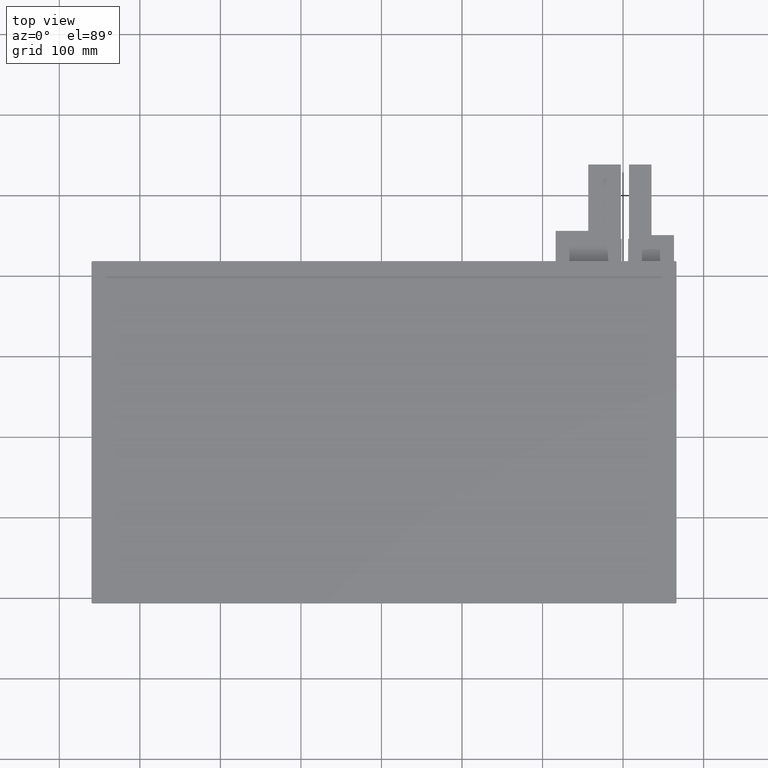
[diagram: clean part render]
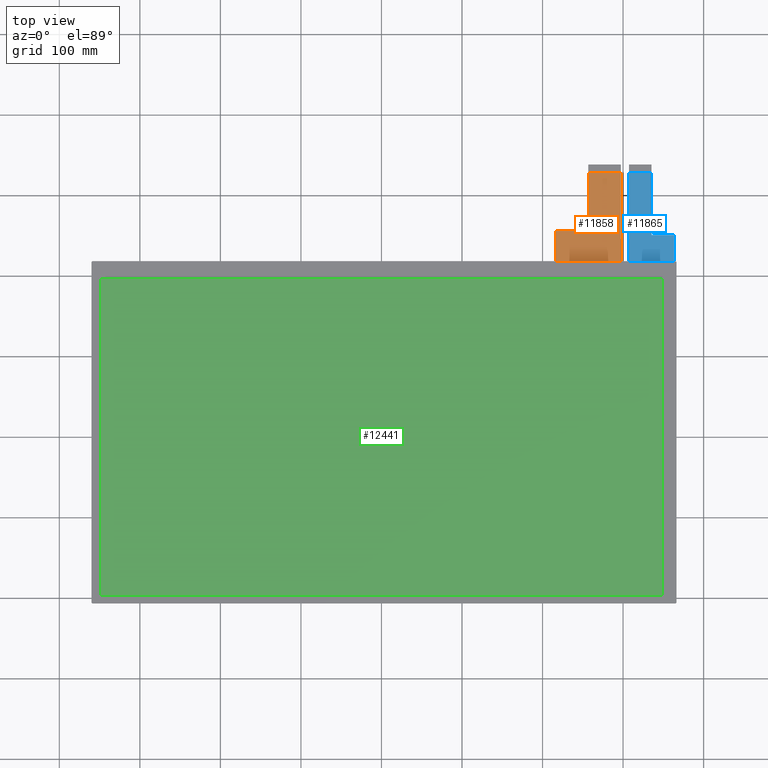
[diagram: same view with three faces highlighted in distinct colors, each labeled with its STEP entity id]
A machine part, top view with three faces highlighted in distinct colors.
Their STEP definitions:

[orange] entity #11858 — the highlighted planar face has unit normal (0, 0, 1).
#84=CIRCLE('',#12472,0.5);
#85=CIRCLE('',#12475,0.5);
#124=FACE_OUTER_BOUND('',#719,.T.);
#719=EDGE_LOOP('',(#7779,#7780,#7781,#7782,#7783,#7784,#7785,#7786,#7787,
#7788));
#1335=LINE('',#16116,#3079);
#1338=LINE('',#16122,#3082);
#1339=LINE('',#16124,#3083);
#1340=LINE('',#16126,#3084);
#1341=LINE('',#16128,#3085);
#1342=LINE('',#16130,#3086);
#1343=LINE('',#16132,#3087);
#1344=LINE('',#16134,#3088);
#3079=VECTOR('',#13129,10.);
#3082=VECTOR('',#13134,10.);
#3083=VECTOR('',#13135,10.);
#3084=VECTOR('',#13136,10.);
#3085=VECTOR('',#13137,10.);
#3086=VECTOR('',#13138,10.);
#3087=VECTOR('',#13139,10.);
#3088=VECTOR('',#13140,10.);
#4817=VERTEX_POINT('',#16109);
#4818=VERTEX_POINT('',#16111);
#4819=VERTEX_POINT('',#16115);
#4821=VERTEX_POINT('',#16121);
#4822=VERTEX_POINT('',#16123);
#4823=VERTEX_POINT('',#16125);
#4824=VERTEX_POINT('',#16127);
#4825=VERTEX_POINT('',#16129);
#4826=VERTEX_POINT('',#16131);
#4827=VERTEX_POINT('',#16133);
#5999=EDGE_CURVE('',#4817,#4818,#84,.T.);
#6001=EDGE_CURVE('',#4819,#4818,#1335,.T.);
#6004=EDGE_CURVE('',#4817,#4821,#1338,.T.);
#6005=EDGE_CURVE('',#4822,#4821,#1339,.T.);
#6006=EDGE_CURVE('',#4822,#4823,#1340,.T.);
#6007=EDGE_CURVE('',#4823,#4824,#1341,.T.);
#6008=EDGE_CURVE('',#4824,#4825,#1342,.T.);
#6009=EDGE_CURVE('',#4825,#4826,#1343,.T.);
#6010=EDGE_CURVE('',#4826,#4827,#1344,.T.);
#6011=EDGE_CURVE('',#4819,#4827,#85,.T.);
#7779=ORIENTED_EDGE('',*,*,#5999,.F.);
#7780=ORIENTED_EDGE('',*,*,#6004,.T.);
#7781=ORIENTED_EDGE('',*,*,#6005,.F.);
#7782=ORIENTED_EDGE('',*,*,#6006,.T.);
#7783=ORIENTED_EDGE('',*,*,#6007,.T.);
#7784=ORIENTED_EDGE('',*,*,#6008,.T.);
#7785=ORIENTED_EDGE('',*,*,#6009,.T.);
#7786=ORIENTED_EDGE('',*,*,#6010,.T.);
#7787=ORIENTED_EDGE('',*,*,#6011,.F.);
#7788=ORIENTED_EDGE('',*,*,#6001,.T.);
#11271=PLANE('',#12474);
#11858=ADVANCED_FACE('',(#124),#11271,.T.);
#12472=AXIS2_PLACEMENT_3D('',#16112,#13124,#13125);
#12474=AXIS2_PLACEMENT_3D('',#16120,#13132,#13133);
#12475=AXIS2_PLACEMENT_3D('',#16135,#13141,#13142);
#13124=DIRECTION('center_axis',(0.,0.,-1.));
#13125=DIRECTION('ref_axis',(-0.707106781186598,0.707106781186497,0.));
#13129=DIRECTION('',(-1.,-8.77213254024815E-16,0.));
#13132=DIRECTION('center_axis',(0.,0.,1.));
#13133=DIRECTION('ref_axis',(1.,0.,0.));
#13134=DIRECTION('',(9.47390314346802E-16,-1.,0.));
#13135=DIRECTION('',(-1.,-4.89152372132796E-17,0.));
#13136=DIRECTION('',(-5.14886040405868E-15,1.,0.));
#13137=DIRECTION('',(-1.,0.,0.));
#13138=DIRECTION('',(-7.68985644762012E-16,1.,0.));
#13139=DIRECTION('',(-1.,0.,0.));
#13140=DIRECTION('',(4.30631961066727E-16,-1.,0.));
#13141=DIRECTION('center_axis',(0.,0.,1.));
#13142=DIRECTION('ref_axis',(0.707106781186598,-0.707106781186497,0.));
#16109=CARTESIAN_POINT('',(216.3,255.525,-1.1));
#16111=CARTESIAN_POINT('',(216.8,256.025,-1.1));
#16112=CARTESIAN_POINT('Origin',(216.8,255.525,-1.1));
#16115=CARTESIAN_POINT('',(256.3,256.025,-1.1));
#16116=CARTESIAN_POINT('',(256.8,256.025,-1.1));
#16120=CARTESIAN_POINT('Origin',(257.3,278.525,-1.1));
#16121=CARTESIAN_POINT('',(216.3,218.525,-1.1));
#16122=CARTESIAN_POINT('',(216.3,256.025,-1.1));
#16123=CARTESIAN_POINT('',(298.3,218.525,-1.1));
#16124=CARTESIAN_POINT('',(-51.3500000000001,218.525,-1.1));
#16125=CARTESIAN_POINT('',(298.3,246.125,-1.1));
#16126=CARTESIAN_POINT('',(298.3,218.525,-1.1));
#16127=CARTESIAN_POINT('',(297.3,246.125,-1.1));
#16128=CARTESIAN_POINT('',(298.3,246.125,-1.1));
#16129=CARTESIAN_POINT('',(297.3,328.525,-1.1));
#16130=CARTESIAN_POINT('',(297.3,246.125,-1.1));
#16131=CARTESIAN_POINT('',(256.8,328.525,-1.1));
#16132=CARTESIAN_POINT('',(257.05,328.525,-1.1));
#16133=CARTESIAN_POINT('',(256.8,256.525,-1.1));
#16134=CARTESIAN_POINT('',(256.8,338.525,-1.1));
#16135=CARTESIAN_POINT('Origin',(256.3,256.525,-1.1));

[blue] entity #11865 — the highlighted planar face has unit normal (0, 0, 1).
#87=CIRCLE('',#12480,0.5);
#90=CIRCLE('',#12485,0.5);
#131=FACE_OUTER_BOUND('',#726,.T.);
#726=EDGE_LOOP('',(#7817,#7818,#7819,#7820,#7821,#7822,#7823,#7824,#7825,
#7826));
#1354=LINE('',#16163,#3098);
#1358=LINE('',#16175,#3102);
#1361=LINE('',#16181,#3105);
#1362=LINE('',#16183,#3106);
#1363=LINE('',#16185,#3107);
#1364=LINE('',#16187,#3108);
#1365=LINE('',#16189,#3109);
#1366=LINE('',#16190,#3110);
#3098=VECTOR('',#13166,10.);
#3102=VECTOR('',#13178,10.);
#3105=VECTOR('',#13183,10.);
#3106=VECTOR('',#13184,10.);
#3107=VECTOR('',#13185,10.);
#3108=VECTOR('',#13186,10.);
#3109=VECTOR('',#13187,10.);
#3110=VECTOR('',#13188,10.);
#4834=VERTEX_POINT('',#16153);
#4835=VERTEX_POINT('',#16154);
#4838=VERTEX_POINT('',#16162);
#4841=VERTEX_POINT('',#16170);
#4842=VERTEX_POINT('',#16174);
#4844=VERTEX_POINT('',#16180);
#4845=VERTEX_POINT('',#16182);
#4846=VERTEX_POINT('',#16184);
#4847=VERTEX_POINT('',#16186);
#4848=VERTEX_POINT('',#16188);
#6020=EDGE_CURVE('',#4834,#4835,#87,.T.);
#6024=EDGE_CURVE('',#4838,#4835,#1354,.T.);
#6028=EDGE_CURVE('',#4838,#4841,#90,.T.);
#6030=EDGE_CURVE('',#4842,#4841,#1358,.T.);
#6033=EDGE_CURVE('',#4834,#4844,#1361,.T.);
#6034=EDGE_CURVE('',#4844,#4845,#1362,.T.);
#6035=EDGE_CURVE('',#4845,#4846,#1363,.T.);
#6036=EDGE_CURVE('',#4846,#4847,#1364,.T.);
#6037=EDGE_CURVE('',#4847,#4848,#1365,.T.);
#6038=EDGE_CURVE('',#4842,#4848,#1366,.T.);
#7817=ORIENTED_EDGE('',*,*,#6028,.F.);
#7818=ORIENTED_EDGE('',*,*,#6024,.T.);
#7819=ORIENTED_EDGE('',*,*,#6020,.F.);
#7820=ORIENTED_EDGE('',*,*,#6033,.T.);
#7821=ORIENTED_EDGE('',*,*,#6034,.T.);
#7822=ORIENTED_EDGE('',*,*,#6035,.T.);
#7823=ORIENTED_EDGE('',*,*,#6036,.T.);
#7824=ORIENTED_EDGE('',*,*,#6037,.T.);
#7825=ORIENTED_EDGE('',*,*,#6038,.F.);
#7826=ORIENTED_EDGE('',*,*,#6030,.T.);
#11275=PLANE('',#12487);
#11865=ADVANCED_FACE('',(#131),#11275,.T.);
#12480=AXIS2_PLACEMENT_3D('',#16155,#13158,#13159);
#12485=AXIS2_PLACEMENT_3D('',#16171,#13173,#13174);
#12487=AXIS2_PLACEMENT_3D('',#16179,#13181,#13182);
#13158=DIRECTION('center_axis',(0.,0.,1.));
#13159=DIRECTION('ref_axis',(-0.707106781186497,-0.707106781186598,0.));
#13166=DIRECTION('',(-1.,0.,0.));
#13173=DIRECTION('center_axis',(0.,0.,-1.));
#13174=DIRECTION('ref_axis',(0.707106781186548,0.707106781186548,0.));
#13178=DIRECTION('',(0.,1.,0.));
#13181=DIRECTION('center_axis',(0.,0.,1.));
#13182=DIRECTION('ref_axis',(1.,0.,0.));
#13183=DIRECTION('',(-8.10196962098175E-16,1.,0.));
#13184=DIRECTION('',(-1.,0.,0.));
#13185=DIRECTION('',(1.15347846714302E-15,-1.,0.));
#13186=DIRECTION('',(-1.,0.,0.));
#13187=DIRECTION('',(1.28721510101467E-15,-1.,0.));
#13188=DIRECTION('',(-1.,-4.89152372132796E-17,0.));
#16153=CARTESIAN_POINT('',(335.3,251.325,-1.1));
#16154=CARTESIAN_POINT('',(335.8,250.825,-1.1));
#16155=CARTESIAN_POINT('Origin',(335.8,251.325,-1.1));
#16162=CARTESIAN_POINT('',(362.8,250.825,-1.1));
#16163=CARTESIAN_POINT('',(363.3,250.825,-1.1));
#16170=CARTESIAN_POINT('',(363.3,250.325,-1.1));
#16171=CARTESIAN_POINT('Origin',(362.8,250.325,-1.1));
#16174=CARTESIAN_POINT('',(363.3,218.525,-1.1));
#16175=CARTESIAN_POINT('',(363.3,218.525,-1.1));
#16179=CARTESIAN_POINT('Origin',(334.8,278.525,-1.1));
#16180=CARTESIAN_POINT('',(335.3,328.525000000001,-1.1));
#16181=CARTESIAN_POINT('',(335.3,250.825,-1.1));
#16182=CARTESIAN_POINT('',(307.3,328.525000000001,-1.1));
#16183=CARTESIAN_POINT('',(321.05,328.525000000001,-1.1));
#16184=CARTESIAN_POINT('',(307.3,246.125,-1.1));
#16185=CARTESIAN_POINT('',(307.3,338.525,-1.1));
#16186=CARTESIAN_POINT('',(306.3,246.125,-1.1));
#16187=CARTESIAN_POINT('',(307.3,246.125,-1.1));
#16188=CARTESIAN_POINT('',(306.3,218.525,-1.1));
#16189=CARTESIAN_POINT('',(306.3,246.125,-1.1));
#16190=CARTESIAN_POINT('',(-12.6,218.525,-1.1));

[green] entity #12441 — the highlighted planar face has unit normal (0, 0, 1).
#707=FACE_OUTER_BOUND('',#1305,.T.);
#1305=EDGE_LOOP('',(#11251,#11252,#11253,#11254));
#3029=LINE('',#19542,#4773);
#3033=LINE('',#19550,#4777);
#3036=LINE('',#19556,#4780);
#3039=LINE('',#19561,#4783);
#4773=VECTOR('',#16005,10.);
#4777=VECTOR('',#16011,10.);
#4780=VECTOR('',#16016,10.);
#4783=VECTOR('',#16021,10.);
#5959=VERTEX_POINT('',#19540);
#5960=VERTEX_POINT('',#19541);
#5963=VERTEX_POINT('',#19549);
#5965=VERTEX_POINT('',#19555);
#7713=EDGE_CURVE('',#5959,#5960,#3029,.T.);
#7717=EDGE_CURVE('',#5963,#5959,#3033,.T.);
#7720=EDGE_CURVE('',#5965,#5963,#3036,.T.);
#7723=EDGE_CURVE('',#5960,#5965,#3039,.T.);
#11251=ORIENTED_EDGE('',*,*,#7713,.T.);
#11252=ORIENTED_EDGE('',*,*,#7723,.T.);
#11253=ORIENTED_EDGE('',*,*,#7720,.T.);
#11254=ORIENTED_EDGE('',*,*,#7717,.T.);
#11847=PLANE('',#13075);
#12441=ADVANCED_FACE('',(#707),#11847,.T.);
#13075=AXIS2_PLACEMENT_3D('',#19584,#16047,#16048);
#16005=DIRECTION('',(1.,0.,0.));
#16011=DIRECTION('',(1.80868712170065E-16,-1.,0.));
#16016=DIRECTION('',(-1.,0.,0.));
#16021=DIRECTION('',(1.80868712170065E-16,1.,0.));
#16047=DIRECTION('center_axis',(0.,0.,1.));
#16048=DIRECTION('ref_axis',(1.,0.,0.));
#19540=CARTESIAN_POINT('',(-349.,-196.425,0.));
#19541=CARTESIAN_POINT('',(349.,-196.425,0.));
#19542=CARTESIAN_POINT('',(-172.925,-196.425,0.));
#19549=CARTESIAN_POINT('',(-349.,196.425,0.));
#19550=CARTESIAN_POINT('',(-349.,101.175,0.));
#19555=CARTESIAN_POINT('',(349.,196.425,0.));
#19556=CARTESIAN_POINT('',(176.075,196.425,0.));
#19561=CARTESIAN_POINT('',(349.,-95.2499999999999,0.));
#19584=CARTESIAN_POINT('Origin',(3.14999999999998,5.92500000000024,0.));